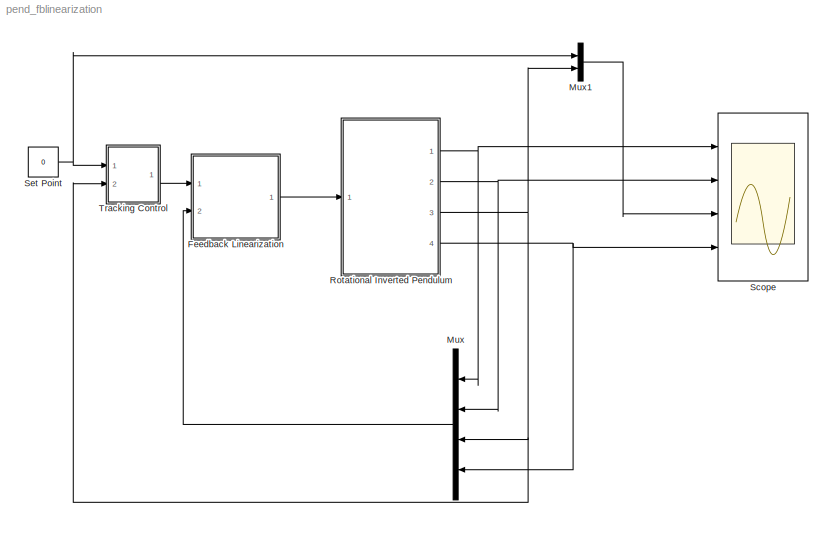
MODEL pend_fblinearization
KIND model
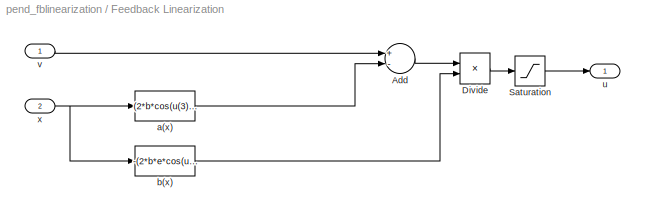
BLOCK [SubSystem] Feedback Linearization
  Ports = [2, 1]
  RequestExecContextInheritance = off
  SID = 2
BLOCK [Sum] Feedback Linearization/Add
  InputSameDT = off
  Inputs = +-
  OutDataTypeStr = Inherit: Inherit via internal rule
  Ports = [2, 1]
  SID = 8
  SaturateOnIntegerOverflow = off
BLOCK [Product] Feedback Linearization/Divide
  InputSameDT = off
  Inputs = */
  OutDataTypeStr = Inherit: Inherit via internal rule
  Ports = [2, 1]
  RndMeth = Floor
  SID = 9
  SaturateOnIntegerOverflow = off
BLOCK [Saturate] Feedback Linearization/Saturation
  InputPortMap = u0
  LowerLimit = -25
  Ports = [1, 1]
  SID = 10
  UpperLimit = 25
BLOCK [Fcn] Feedback Linearization/a(x)
  Expr = (2*b*cos(u(3))*(b*sin(u(3))*u(4)^2 + c*u(2)*sin(2*u(3))*u(4) + d*u(2) - e*0))/(b^2*cos(2*u(3)) - c*f - 2*a*f + b^2 + c*f*cos(2*u(3))) - (((c*sin(2*u(3))*u(2)^2)/2 - c2*u(4) + h*sin(u(3)))*(2*a + c - c*cos(2*u(3))))/(b^2*cos(2*u(3)) - c*f - 2*a*f + b^2 + c*f*cos(2*u(3)))
  SID = 6
BLOCK [Fcn] Feedback Linearization/b(x)
  Expr = -(2*b*e*cos(u(3)))/(b^2*cos(2*u(3)) - c*f - 2*a*f + b^2 + c*f*cos(2*u(3)))
  SID = 7
BLOCK [Outport] Feedback Linearization/u
  IconDisplay = Port number
  SID = 4
BLOCK [Inport] Feedback Linearization/v
  IconDisplay = Port number
  SID = 3
BLOCK [Inport] Feedback Linearization/x
  IconDisplay = Port number
  Port = 2
  SID = 5
BLOCK [Mux] Mux
  DisplayOption = bar
  Ports = [4, 1]
  SID = 37
BLOCK [Mux] Mux1
  DisplayOption = bar
  Inputs = 2
  Ports = [2, 1]
  SID = 38
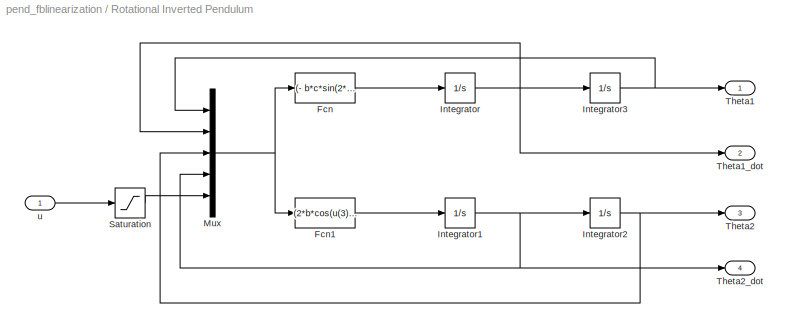
BLOCK [SubSystem] Rotational Inverted Pendulum
  Ports = [1, 4]
  RequestExecContextInheritance = off
  SID = 22
BLOCK [Fcn] Rotational Inverted Pendulum/Fcn
  Expr = (- b*c*sin(2* u(3))*cos(u(3))* u(2)^2 + 2*c*f*sin(2* u(3))* u(2)* u(4) + 2*d*f* u(2) + 2*b*f*sin(u(3))* u(4)^2 + 2*b*c2*cos(u(3))* u(4) - 2*e*f* u(5)- 2*b*h*cos(u(3))*sin(u(3)))/(b^2*cos(2* u(3)) - c*f - 2*a*f + b^2 + c*f*cos(2* u(3)))
  SID = 24
BLOCK [Fcn] Rotational Inverted Pendulum/Fcn1
  Expr = (2*b*cos(u(3))*(b*sin(u(3))*u(4)^2 + c*u(2)*sin(2*u(3))*u(4) + d*u(2) - e*u(5)))/(b^2*cos(2*u(3)) - c*f - 2*a*f + b^2 + c*f*cos(2*u(3))) - (((c*sin(2*u(3))*u(2)^2)/2 - c2*u(4) + h*sin(u(3)))*(2*a + c - c*cos(2*u(3))))/(b^2*cos(2*u(3)) - c*f - 2*a*f + b^2 + c*f*cos(2*u(3)))
  SID = 25
BLOCK [Integrator] Rotational Inverted Pendulum/Integrator
  Ports = [1, 1]
  SID = 26
BLOCK [Integrator] Rotational Inverted Pendulum/Integrator1
  Ports = [1, 1]
  SID = 27
BLOCK [Integrator] Rotational Inverted Pendulum/Integrator2
  InitialCondition = 20*pi/180
  Ports = [1, 1]
  SID = 28
BLOCK [Integrator] Rotational Inverted Pendulum/Integrator3
  Ports = [1, 1]
  SID = 29
BLOCK [Mux] Rotational Inverted Pendulum/Mux
  DisplayOption = bar
  Inputs = 5
  Ports = [5, 1]
  SID = 30
BLOCK [Saturate] Rotational Inverted Pendulum/Saturation
  InputPortMap = u0
  LowerLimit = -25
  Ports = [1, 1]
  SID = 31
  UpperLimit = 25
BLOCK [Outport] Rotational Inverted Pendulum/Theta1
  IconDisplay = Port number
  SID = 32
BLOCK [Outport] Rotational Inverted Pendulum/Theta1_dot
  IconDisplay = Port number
  Port = 2
  SID = 33
BLOCK [Outport] Rotational Inverted Pendulum/Theta2
  IconDisplay = Port number
  Port = 3
  SID = 34
BLOCK [Outport] Rotational Inverted Pendulum/Theta2_dot
  IconDisplay = Port number
  Port = 4
  SID = 35
BLOCK [Inport] Rotational Inverted Pendulum/u
  IconDisplay = Port number
  SID = 23
BLOCK [Scope] Scope
  Floating = off
  NumInputPorts = 4
  Ports = [4]
  SID = 36
  ScopeSpecificationString = Simulink.scopes.TimeScopeBlockCfg('CurrentConfiguration', extmgr.ConfigurationSet(extmgr.Configuration('Core','General UI',true,'FigureColor',[1 1 1]),extmgr.Configuration('Core','Source UI',true),extmgr.Configuration('Sources','WiredSimulink',true,'DataLogging',true,'DataLoggingVariableName','data3','DataLoggingSaveFormat','StructureWithTime','DataLoggingDecimation','1','DataLoggingDecimateData',...<+4334ch>
BLOCK [Constant] Set Point
  SID = 39
  Value = 0
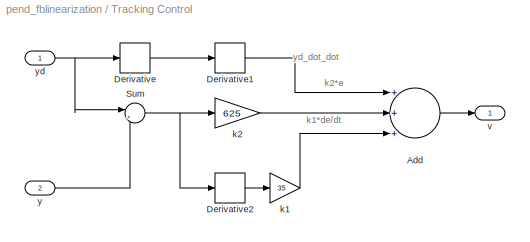
BLOCK [SubSystem] Tracking Control
  Ports = [2, 1]
  RequestExecContextInheritance = off
  SID = 11
BLOCK [Sum] Tracking Control/Add
  InputSameDT = off
  Inputs = +++
  OutDataTypeStr = Inherit: Inherit via internal rule
  Ports = [3, 1]
  SID = 21
  SaturateOnIntegerOverflow = off
BLOCK [Derivative] Tracking Control/Derivative
  SID = 15
BLOCK [Derivative] Tracking Control/Derivative1
  SID = 16
BLOCK [Derivative] Tracking Control/Derivative2
  SID = 17
BLOCK [Sum] Tracking Control/Sum
  IconShape = round
  InputSameDT = off
  Inputs = |+-
  OutDataTypeStr = Inherit: Inherit via internal rule
  Ports = [2, 1]
  SID = 18
  SaturateOnIntegerOverflow = off
BLOCK [Gain] Tracking Control/k1
  Gain = 35
  OutDataTypeStr = Inherit: Inherit via internal rule
  ParamDataTypeStr = Inherit: Inherit via internal rule
  SID = 20
  SaturateOnIntegerOverflow = off
BLOCK [Gain] Tracking Control/k2
  Gain = 625
  OutDataTypeStr = Inherit: Inherit via internal rule
  ParamDataTypeStr = Inherit: Inherit via internal rule
  SID = 19
  SaturateOnIntegerOverflow = off
BLOCK [Outport] Tracking Control/v
  IconDisplay = Port number
  SID = 13
BLOCK [Inport] Tracking Control/y
  IconDisplay = Port number
  Port = 2
  SID = 14
BLOCK [Inport] Tracking Control/yd
  IconDisplay = Port number
  SID = 12
ANNOTATION Tracking Control: k1*de/dt
ANNOTATION Tracking Control: k2*e
ANNOTATION Tracking Control: yd_dot_dot
LINE Feedback Linearization/Add:1 -> Feedback Linearization/Divide:1
LINE Feedback Linearization/Divide:1 -> Feedback Linearization/Saturation:1
LINE Feedback Linearization/Saturation:1 -> Feedback Linearization/u:1
LINE Feedback Linearization/a(x):1 -> Feedback Linearization/Add:2
LINE Feedback Linearization/b(x):1 -> Feedback Linearization/Divide:2
LINE Feedback Linearization/v:1 -> Feedback Linearization/Add:1
NET Feedback Linearization/x:1 -> Feedback Linearization/a(x):1, Feedback Linearization/b(x):1
LINE Feedback Linearization:1 -> Rotational Inverted Pendulum:1
LINE Mux1:1 -> Scope:3
LINE Mux:1 -> Feedback Linearization:2
LINE Rotational Inverted Pendulum/Fcn1:1 -> Rotational Inverted Pendulum/Integrator1:1
LINE Rotational Inverted Pendulum/Fcn:1 -> Rotational Inverted Pendulum/Integrator:1
NET Rotational Inverted Pendulum/Integrator1:1 -> Rotational Inverted Pendulum/Integrator2:1, Rotational Inverted Pendulum/Mux:4, Rotational Inverted Pendulum/Theta2_dot:1
NET Rotational Inverted Pendulum/Integrator2:1 -> Rotational Inverted Pendulum/Mux:3, Rotational Inverted Pendulum/Theta2:1
NET Rotational Inverted Pendulum/Integrator3:1 -> Rotational Inverted Pendulum/Mux:1, Rotational Inverted Pendulum/Theta1:1
NET Rotational Inverted Pendulum/Integrator:1 -> Rotational Inverted Pendulum/Integrator3:1, Rotational Inverted Pendulum/Mux:2, Rotational Inverted Pendulum/Theta1_dot:1
NET Rotational Inverted Pendulum/Mux:1 -> Rotational Inverted Pendulum/Fcn1:1, Rotational Inverted Pendulum/Fcn:1
LINE Rotational Inverted Pendulum/Saturation:1 -> Rotational Inverted Pendulum/Mux:5
LINE Rotational Inverted Pendulum/u:1 -> Rotational Inverted Pendulum/Saturation:1
NET Rotational Inverted Pendulum:1 -> Mux:1, Scope:1
NET Rotational Inverted Pendulum:2 -> Mux:2, Scope:2
NET Rotational Inverted Pendulum:3 -> Mux1:2, Mux:3, Tracking Control:2
NET Rotational Inverted Pendulum:4 -> Mux:4, Scope:4
NET Set Point:1 -> Mux1:1, Tracking Control:1
LINE Tracking Control/Add:1 -> Tracking Control/v:1
LINE Tracking Control/Derivative1:1 -> Tracking Control/Add:1
LINE Tracking Control/Derivative2:1 -> Tracking Control/k1:1
LINE Tracking Control/Derivative:1 -> Tracking Control/Derivative1:1
NET Tracking Control/Sum:1 -> Tracking Control/Derivative2:1, Tracking Control/k2:1
LINE Tracking Control/k1:1 -> Tracking Control/Add:3
LINE Tracking Control/k2:1 -> Tracking Control/Add:2
LINE Tracking Control/y:1 -> Tracking Control/Sum:2
NET Tracking Control/yd:1 -> Tracking Control/Derivative:1, Tracking Control/Sum:1
LINE Tracking Control:1 -> Feedback Linearization:1
note: NET lines group one-source signal fan-out (src -> all destinations, sorted); 1:1 wires keep LINE
